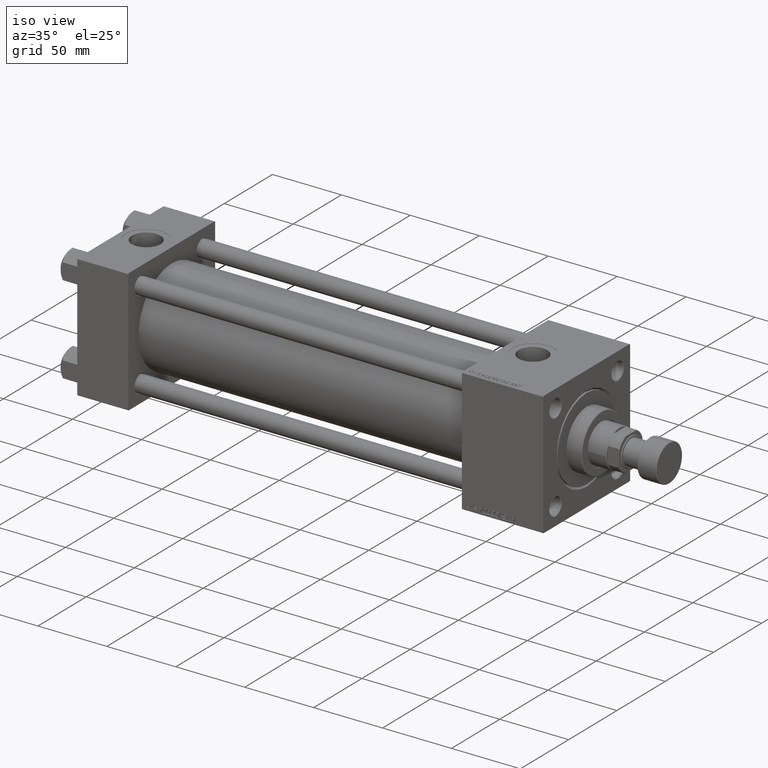
[diagram: clean part render]
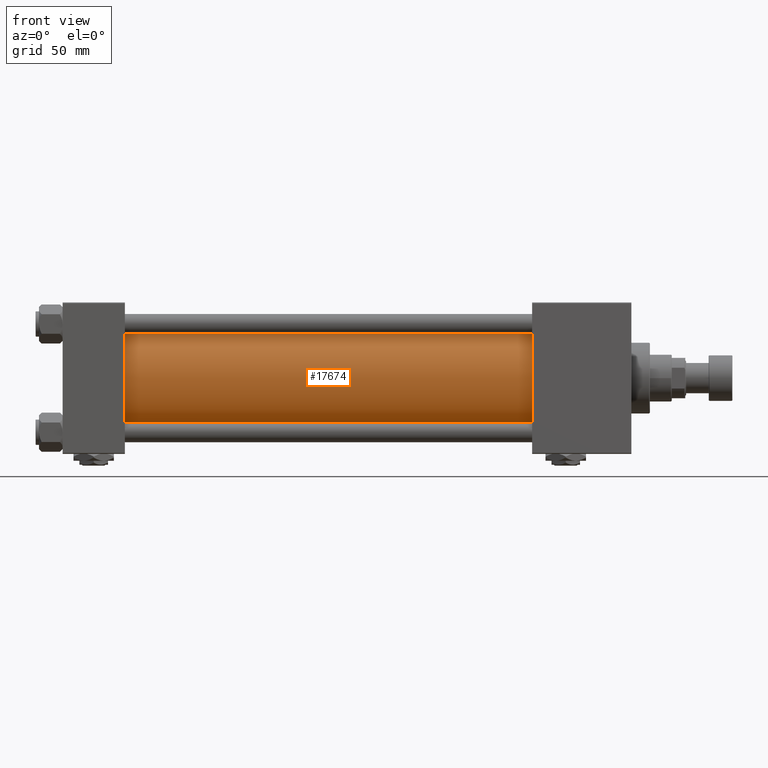
[diagram: tour spotlight — one face highlighted and labeled with its STEP entity id]
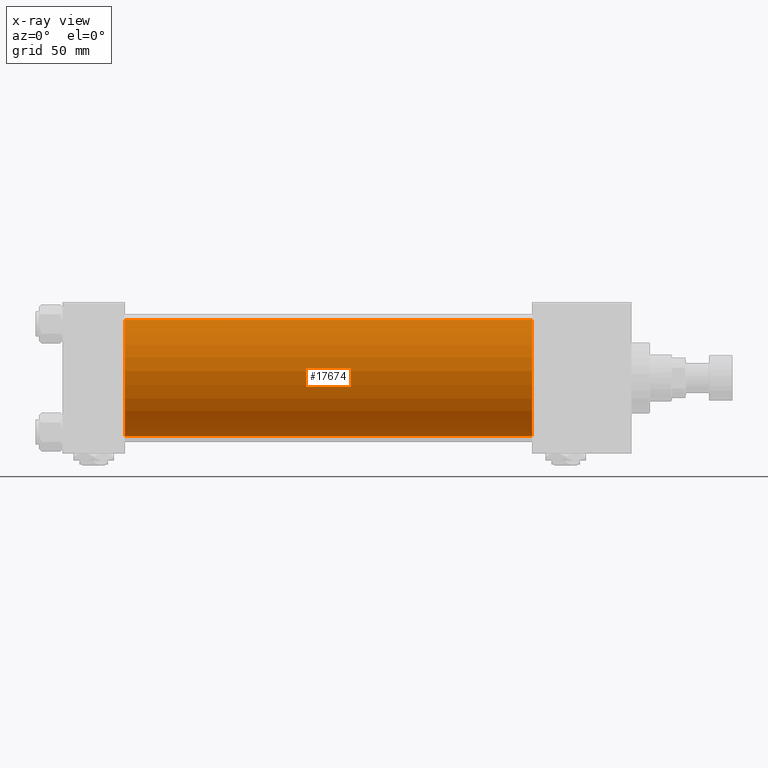
[diagram: x-ray of the same camera — body ghosted, this tour face saturated]
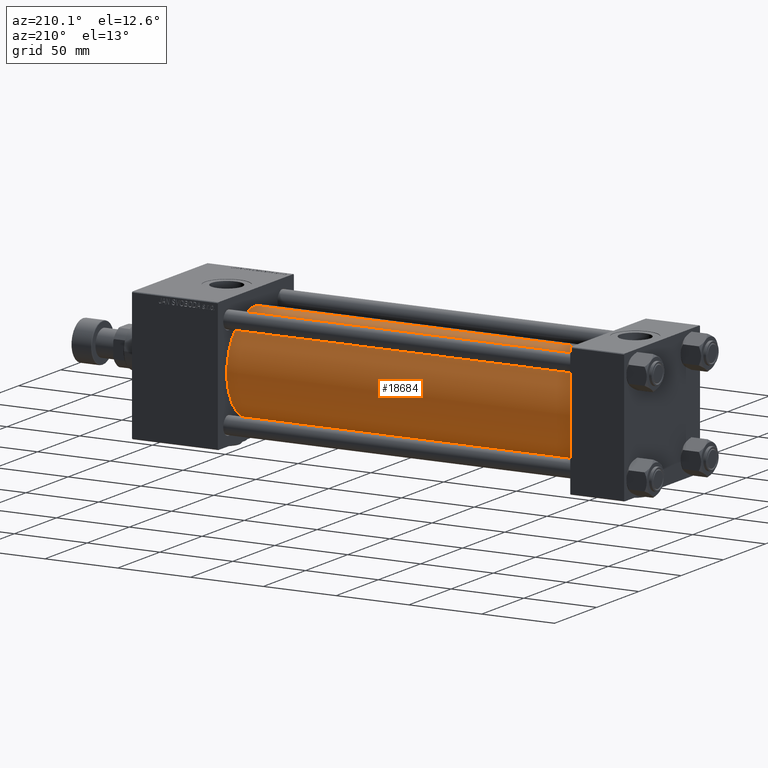
[diagram: tour spotlight — one face highlighted and labeled with its STEP entity id]
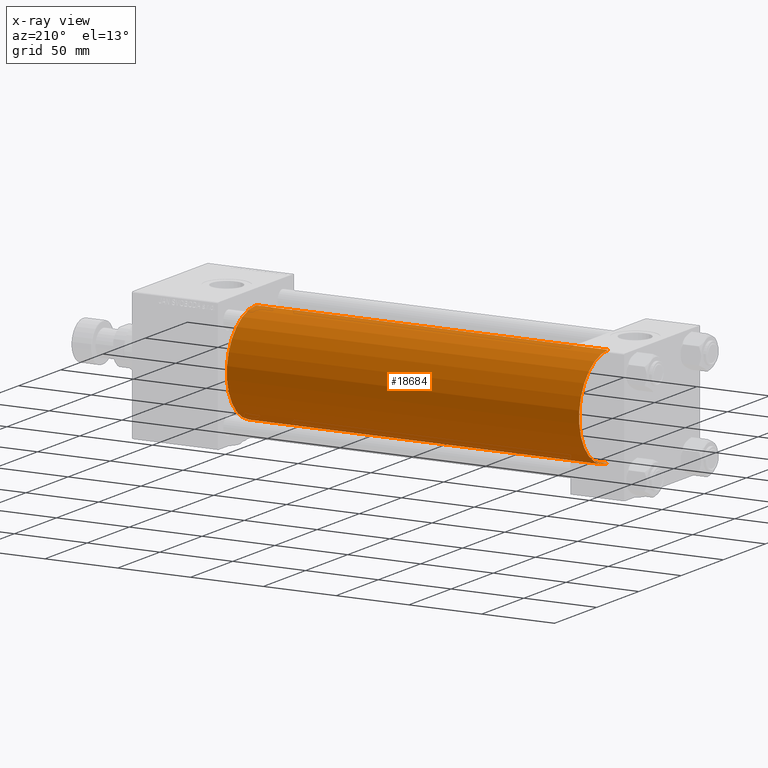
[diagram: x-ray of the same camera — body ghosted, this tour face saturated]
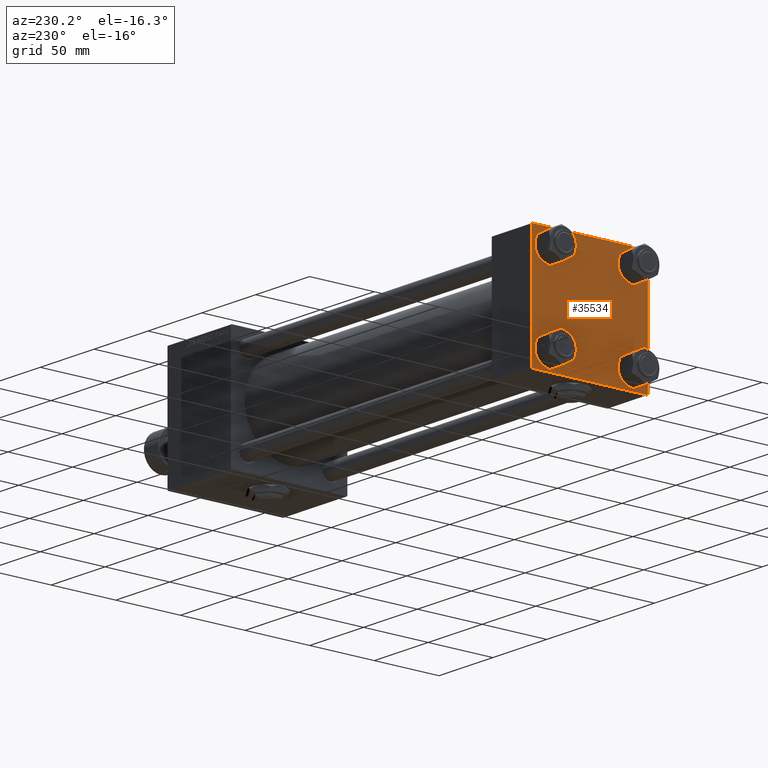
[diagram: tour spotlight — one face highlighted and labeled with its STEP entity id]
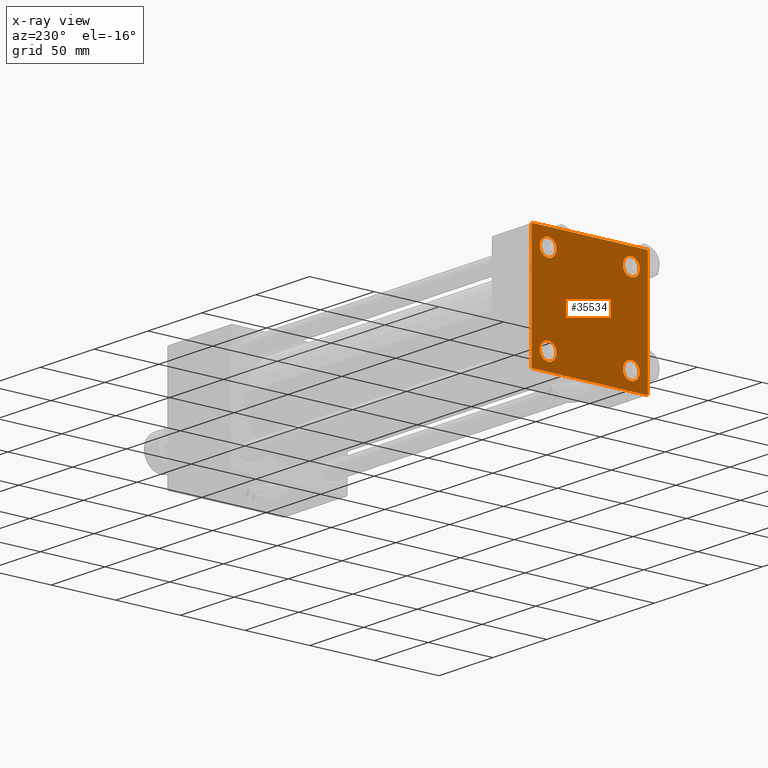
[diagram: x-ray of the same camera — body ghosted, this tour face saturated]
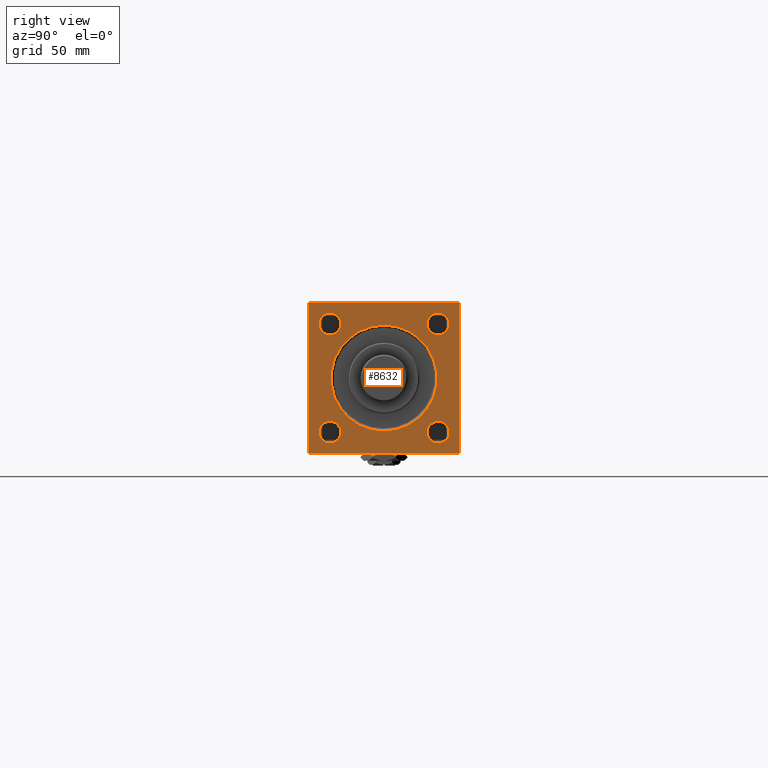
[diagram: tour spotlight — one face highlighted and labeled with its STEP entity id]
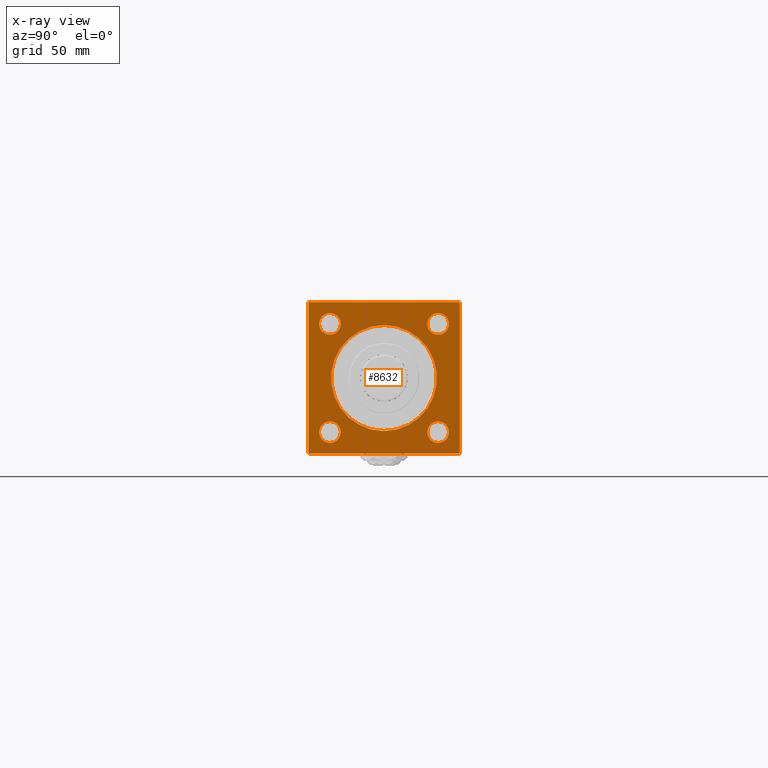
[diagram: x-ray of the same camera — body ghosted, this tour face saturated]
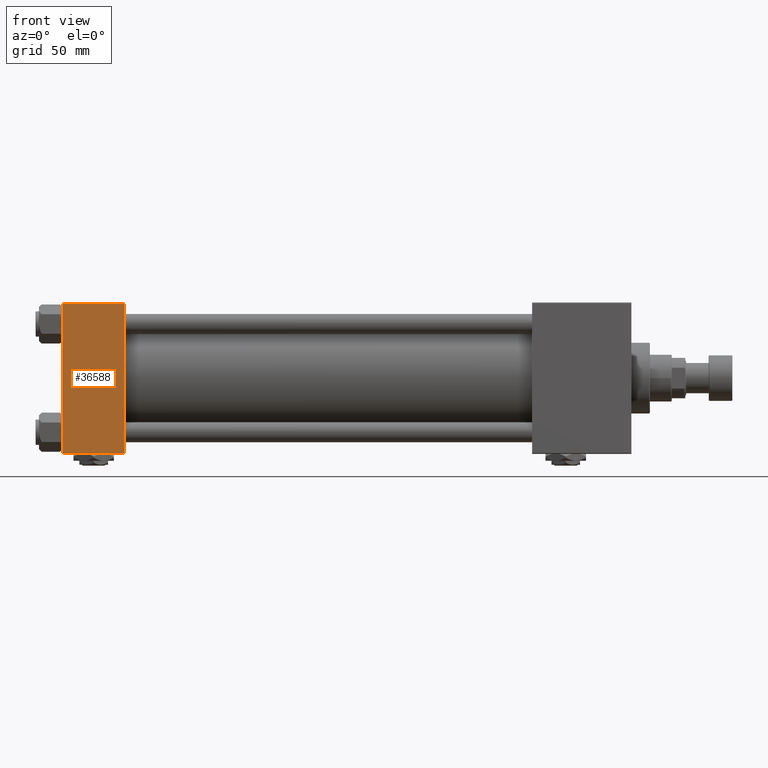
[diagram: tour spotlight — one face highlighted and labeled with its STEP entity id]
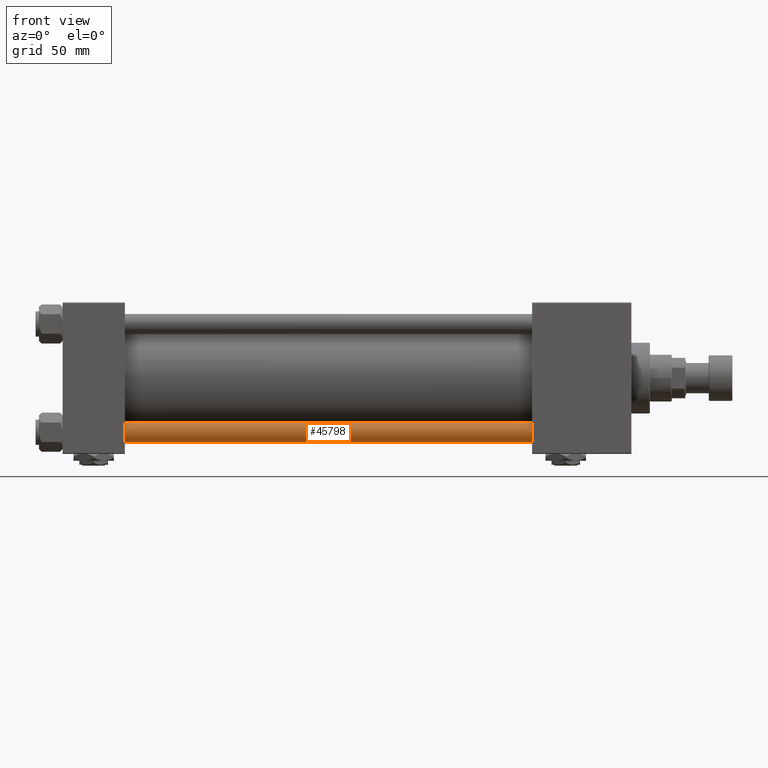
[diagram: tour spotlight — one face highlighted and labeled with its STEP entity id]
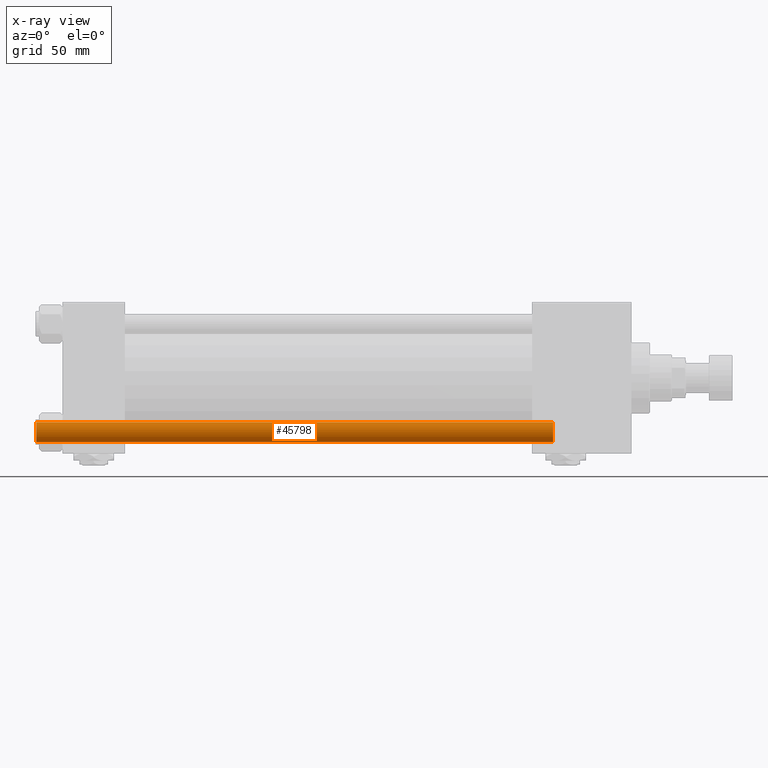
[diagram: x-ray of the same camera — body ghosted, this tour face saturated]
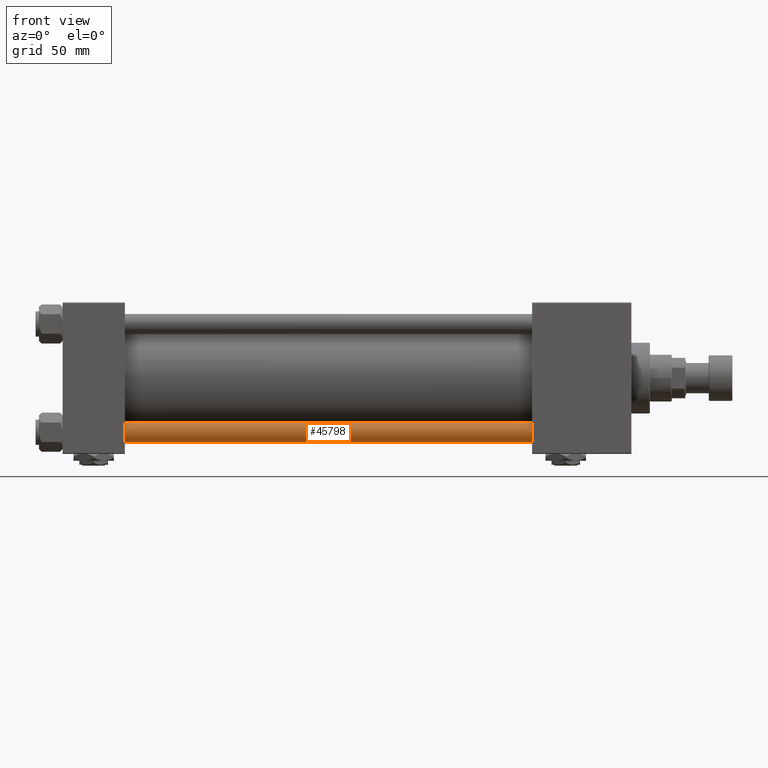
[diagram: tour spotlight — one face highlighted and labeled with its STEP entity id]
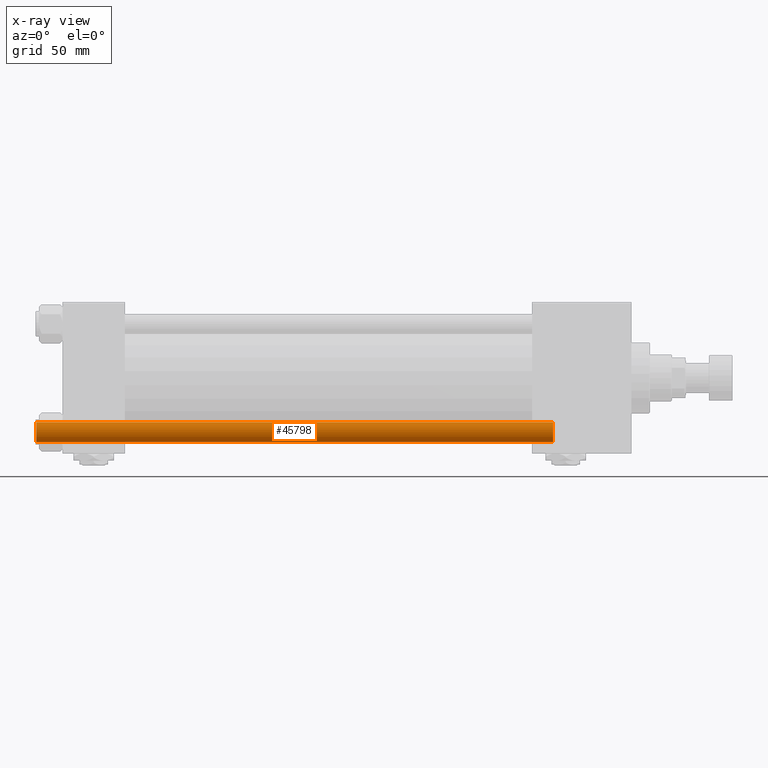
[diagram: x-ray of the same camera — body ghosted, this tour face saturated]
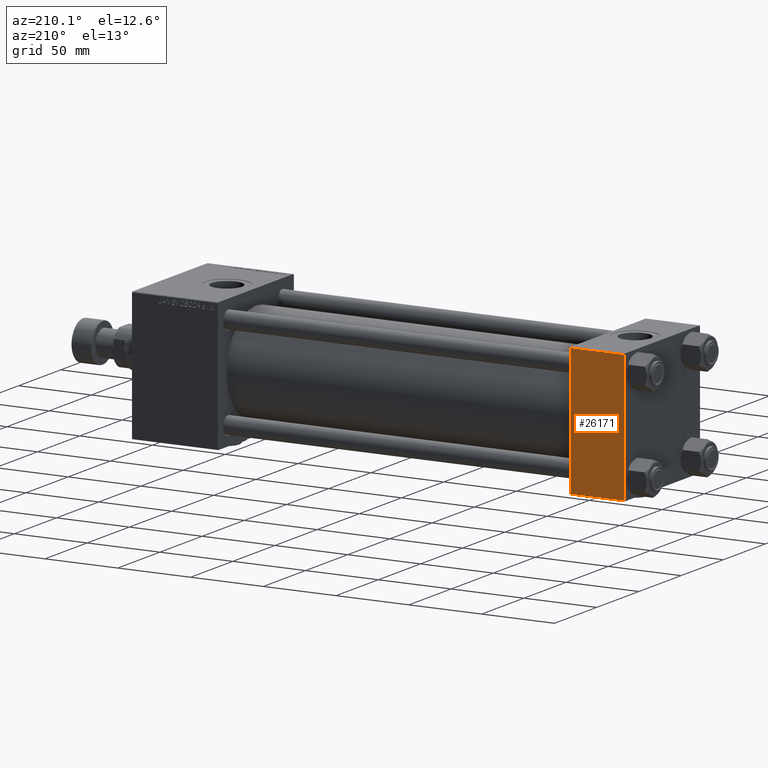
[diagram: tour spotlight — one face highlighted and labeled with its STEP entity id]
A machine part: a face-by-face anatomy tour. The part has 1264 B-rep faces; the first image is the clean iso view, then the 8 largest visible faces are spotlighted one at a time (largest first), each with its STEP entity span.

Face 1 — front view, entity #17674. An x-ray twin of the same camera follows (body ghosted, this face saturated) — the face is partly hidden behind the body. In plain terms, the highlighted cylindrical surface (partial cylindrical patch) has radius 34.5 mm, axis along (-1, -0, -0).
Definition (entity closure, byte-faithful):
#1693 = DIRECTION ( 'NONE',  ( 0.000000000000000000, 0.000000000000000000, 1.000000000000000000 ) ) ;
#2032 = LINE ( 'NONE', #9782, #8382 ) ;
#2772 = ORIENTED_EDGE ( 'NONE', *, *, #43837, .F. ) ;
#3514 = CARTESIAN_POINT ( 'NONE',  ( 278.9999999999999432, -2.602085213965210642E-15, 0.000000000000000000 ) ) ;
#3986 = AXIS2_PLACEMENT_3D ( 'NONE', #34067, #30337, #49541 ) ;
#6729 = AXIS2_PLACEMENT_3D ( 'NONE', #3514, #44601, #11261 ) ;
#7296 = AXIS2_PLACEMENT_3D ( 'NONE', #25428, #13696, #1693 ) ;
#8382 = VECTOR ( 'NONE', #10565, 1000.000000000000000 ) ;
#8388 = LINE ( 'NONE', #12123, #51734 ) ;
#9227 = VERTEX_POINT ( 'NONE', #50131 ) ;
#9782 = CARTESIAN_POINT ( 'NONE',  ( 278.9999999999999432, 1.622946243093158675E-15, -34.50000000000000000 ) ) ;
#10565 = DIRECTION ( 'NONE',  ( -1.000000000000000000, -0.000000000000000000, -0.000000000000000000 ) ) ;
#10613 = VERTEX_POINT ( 'NONE', #52297 ) ;
#11261 = DIRECTION ( 'NONE',  ( 0.000000000000000000, 0.000000000000000000, -1.000000000000000000 ) ) ;
#12123 = CARTESIAN_POINT ( 'NONE',  ( 278.9999999999999432, -2.602085213965210642E-15, 34.50000000000000000 ) ) ;
#13696 = DIRECTION ( 'NONE',  ( -1.000000000000000000, -0.000000000000000000, -0.000000000000000000 ) ) ;
#16962 = CIRCLE ( 'NONE', #6729, 34.50000000000000000 ) ;
#17674 = ADVANCED_FACE ( 'NONE', ( #34237 ), #29702, .T. ) ;
#20319 = EDGE_CURVE ( 'NONE', #10613, #44473, #39792, .T. ) ;
#25428 = CARTESIAN_POINT ( 'NONE',  ( 278.9999999999999432, -2.602085213965210642E-15, 0.000000000000000000 ) ) ;
#28392 = DIRECTION ( 'NONE',  ( -1.000000000000000000, -0.000000000000000000, -0.000000000000000000 ) ) ;
#29702 = CYLINDRICAL_SURFACE ( 'NONE', #7296, 34.50000000000000000 ) ;
#30337 = DIRECTION ( 'NONE',  ( 1.000000000000000000, -0.000000000000000000, 0.000000000000000000 ) ) ;
#34067 = CARTESIAN_POINT ( 'NONE',  ( 37.00000000000000711, -2.602085213965210642E-15, 0.000000000000000000 ) ) ;
#34237 = FACE_OUTER_BOUND ( 'NONE', #39499, .T. ) ;
#39499 = EDGE_LOOP ( 'NONE', ( #2772, #46703, #49406, #43893 ) ) ;
#39792 = CIRCLE ( 'NONE', #3986, 34.50000000000000000 ) ;
#40933 = EDGE_CURVE ( 'NONE', #9227, #10613, #8388, .T. ) ;
#42139 = CARTESIAN_POINT ( 'NONE',  ( 37.00000000000000711, 1.622946243093158675E-15, -34.50000000000000000 ) ) ;
#43837 = EDGE_CURVE ( 'NONE', #49039, #44473, #2032, .T. ) ;
#43893 = ORIENTED_EDGE ( 'NONE', *, *, #20319, .T. ) ;
#44473 = VERTEX_POINT ( 'NONE', #42139 ) ;
#44601 = DIRECTION ( 'NONE',  ( 1.000000000000000000, 0.000000000000000000, 0.000000000000000000 ) ) ;
#46297 = EDGE_CURVE ( 'NONE', #9227, #49039, #16962, .T. ) ;
#46703 = ORIENTED_EDGE ( 'NONE', *, *, #46297, .F. ) ;
#49039 = VERTEX_POINT ( 'NONE', #51199 ) ;
#49406 = ORIENTED_EDGE ( 'NONE', *, *, #40933, .T. ) ;
#49541 = DIRECTION ( 'NONE',  ( 0.000000000000000000, 0.000000000000000000, 1.000000000000000000 ) ) ;
#50131 = CARTESIAN_POINT ( 'NONE',  ( 278.9999999999999432, -2.602085213965210642E-15, 34.50000000000000000 ) ) ;
#51199 = CARTESIAN_POINT ( 'NONE',  ( 278.9999999999999432, 1.622946243093158675E-15, -34.50000000000000000 ) ) ;
#51734 = VECTOR ( 'NONE', #28392, 1000.000000000000000 ) ;
#52297 = CARTESIAN_POINT ( 'NONE',  ( 37.00000000000000711, -2.602085213965210642E-15, 34.50000000000000000 ) ) ;

Face 2 — auxiliary view, entity #18684. An x-ray twin of the same camera follows (body ghosted, this face saturated) — the face is partly hidden behind the body. In plain terms, the highlighted cylindrical surface (partial cylindrical patch) has radius 34.5 mm, axis along (-1, -0, -0).
Definition (entity closure, byte-faithful):
#721 = AXIS2_PLACEMENT_3D ( 'NONE', #30477, #9667, #46745 ) ;
#2032 = LINE ( 'NONE', #9782, #8382 ) ;
#2790 = ORIENTED_EDGE ( 'NONE', *, *, #35321, .F. ) ;
#6805 = CARTESIAN_POINT ( 'NONE',  ( 278.9999999999999432, -2.602085213965210642E-15, 0.000000000000000000 ) ) ;
#6887 = ORIENTED_EDGE ( 'NONE', *, *, #40933, .F. ) ;
#8382 = VECTOR ( 'NONE', #10565, 1000.000000000000000 ) ;
#8388 = LINE ( 'NONE', #12123, #51734 ) ;
#9227 = VERTEX_POINT ( 'NONE', #50131 ) ;
#9244 = CIRCLE ( 'NONE', #721, 34.50000000000000000 ) ;
#9333 = CARTESIAN_POINT ( 'NONE',  ( 278.9999999999999432, -2.602085213965210642E-15, 0.000000000000000000 ) ) ;
#9667 = DIRECTION ( 'NONE',  ( 1.000000000000000000, -0.000000000000000000, 0.000000000000000000 ) ) ;
#9782 = CARTESIAN_POINT ( 'NONE',  ( 278.9999999999999432, 1.622946243093158675E-15, -34.50000000000000000 ) ) ;
#10296 = CYLINDRICAL_SURFACE ( 'NONE', #44824, 34.50000000000000000 ) ;
#10565 = DIRECTION ( 'NONE',  ( -1.000000000000000000, -0.000000000000000000, -0.000000000000000000 ) ) ;
#10613 = VERTEX_POINT ( 'NONE', #52297 ) ;
#12123 = CARTESIAN_POINT ( 'NONE',  ( 278.9999999999999432, -2.602085213965210642E-15, 34.50000000000000000 ) ) ;
#18684 = ADVANCED_FACE ( 'NONE', ( #19070 ), #10296, .T. ) ;
#19070 = FACE_OUTER_BOUND ( 'NONE', #30939, .T. ) ;
#24214 = ORIENTED_EDGE ( 'NONE', *, *, #43837, .T. ) ;
#26933 = CIRCLE ( 'NONE', #51651, 34.50000000000000000 ) ;
#28392 = DIRECTION ( 'NONE',  ( -1.000000000000000000, -0.000000000000000000, -0.000000000000000000 ) ) ;
#30477 = CARTESIAN_POINT ( 'NONE',  ( 37.00000000000000711, -2.602085213965210642E-15, 0.000000000000000000 ) ) ;
#30939 = EDGE_LOOP ( 'NONE', ( #2790, #24214, #36009, #6887 ) ) ;
#34676 = DIRECTION ( 'NONE',  ( 1.000000000000000000, 0.000000000000000000, 0.000000000000000000 ) ) ;
#35321 = EDGE_CURVE ( 'NONE', #49039, #9227, #26933, .T. ) ;
#36009 = ORIENTED_EDGE ( 'NONE', *, *, #45097, .T. ) ;
#38411 = DIRECTION ( 'NONE',  ( 0.000000000000000000, 0.000000000000000000, -1.000000000000000000 ) ) ;
#39353 = DIRECTION ( 'NONE',  ( 0.000000000000000000, 0.000000000000000000, 1.000000000000000000 ) ) ;
#40933 = EDGE_CURVE ( 'NONE', #9227, #10613, #8388, .T. ) ;
#42139 = CARTESIAN_POINT ( 'NONE',  ( 37.00000000000000711, 1.622946243093158675E-15, -34.50000000000000000 ) ) ;
#43837 = EDGE_CURVE ( 'NONE', #49039, #44473, #2032, .T. ) ;
#44473 = VERTEX_POINT ( 'NONE', #42139 ) ;
#44824 = AXIS2_PLACEMENT_3D ( 'NONE', #6805, #50582, #39353 ) ;
#45097 = EDGE_CURVE ( 'NONE', #44473, #10613, #9244, .T. ) ;
#46745 = DIRECTION ( 'NONE',  ( 0.000000000000000000, 0.000000000000000000, 1.000000000000000000 ) ) ;
#49039 = VERTEX_POINT ( 'NONE', #51199 ) ;
#50131 = CARTESIAN_POINT ( 'NONE',  ( 278.9999999999999432, -2.602085213965210642E-15, 34.50000000000000000 ) ) ;
#50582 = DIRECTION ( 'NONE',  ( -1.000000000000000000, -0.000000000000000000, -0.000000000000000000 ) ) ;
#51199 = CARTESIAN_POINT ( 'NONE',  ( 278.9999999999999432, 1.622946243093158675E-15, -34.50000000000000000 ) ) ;
#51651 = AXIS2_PLACEMENT_3D ( 'NONE', #9333, #34676, #38411 ) ;
#51734 = VECTOR ( 'NONE', #28392, 1000.000000000000000 ) ;
#52297 = CARTESIAN_POINT ( 'NONE',  ( 37.00000000000000711, -2.602085213965210642E-15, 34.50000000000000000 ) ) ;

Face 3 — auxiliary view, entity #35534. An x-ray twin of the same camera follows (body ghosted, this face saturated) — the face is partly hidden behind the body. In plain terms, the highlighted planar face has unit normal (-1, 0, 0).
Definition (entity closure, byte-faithful):
#208 = VERTEX_POINT ( 'NONE', #32836 ) ;
#240 = LINE ( 'NONE', #9027, #28450 ) ;
#247 = CARTESIAN_POINT ( 'NONE',  ( 0.000000000000000000, 44.74999999999998579, -44.74999999999998579 ) ) ;
#363 = AXIS2_PLACEMENT_3D ( 'NONE', #36052, #19767, #4036 ) ;
#1045 = EDGE_CURVE ( 'NONE', #47963, #19359, #1718, .T. ) ;
#1718 = CIRCLE ( 'NONE', #13679, 6.499999999999977796 ) ;
#1723 = EDGE_CURVE ( 'NONE', #12670, #15579, #21081, .T. ) ;
#2513 = CARTESIAN_POINT ( 'NONE',  ( 0.000000000000000000, 44.99999999999998579, -44.49999999999995737 ) ) ;
#2825 = CIRCLE ( 'NONE', #26688, 6.500000000000019540 ) ;
#3135 = EDGE_LOOP ( 'NONE', ( #19887, #23934 ) ) ;
#3615 = VERTEX_POINT ( 'NONE', #5466 ) ;
#3894 = DIRECTION ( 'NONE',  ( 1.000000000000000000, -0.000000000000000000, 0.000000000000000000 ) ) ;
#4036 = DIRECTION ( 'NONE',  ( 0.000000000000000000, 0.000000000000000000, 1.000000000000000000 ) ) ;
#4134 = LINE ( 'NONE', #27885, #41280 ) ;
#5147 = EDGE_CURVE ( 'NONE', #10272, #3615, #10627, .T. ) ;
#5466 = CARTESIAN_POINT ( 'NONE',  ( 0.000000000000000000, 44.99999999999998579, 44.50000000000001421 ) ) ;
#5986 = VERTEX_POINT ( 'NONE', #28625 ) ;
#6278 = ORIENTED_EDGE ( 'NONE', *, *, #35015, .T. ) ;
#6429 = EDGE_LOOP ( 'NONE', ( #8730, #7598, #29806, #12833, #14924, #6278, #43966, #47568 ) ) ;
#6485 = EDGE_CURVE ( 'NONE', #24314, #22640, #21491, .T. ) ;
#6540 = DIRECTION ( 'NONE',  ( 0.000000000000000000, -1.000000000000000000, -1.541976423090495387E-16 ) ) ;
#7138 = DIRECTION ( 'NONE',  ( 0.000000000000000000, 0.7071067811865474617, -0.7071067811865474617 ) ) ;
#7598 = ORIENTED_EDGE ( 'NONE', *, *, #8169, .T. ) ;
#8169 = EDGE_CURVE ( 'NONE', #28984, #208, #36541, .T. ) ;
#8730 = ORIENTED_EDGE ( 'NONE', *, *, #51605, .T. ) ;
#8937 = CARTESIAN_POINT ( 'NONE',  ( 0.000000000000000000, -32.14999999999997726, 32.15000000000001279 ) ) ;
#9027 = CARTESIAN_POINT ( 'NONE',  ( 0.000000000000000000, 44.99999999999998579, 45.00000000000001421 ) ) ;
#10272 = VERTEX_POINT ( 'NONE', #45093 ) ;
#10627 = LINE ( 'NONE', #22353, #12111 ) ;
#10751 = VECTOR ( 'NONE', #50072, 1000.000000000000114 ) ;
#11313 = CARTESIAN_POINT ( 'NONE',  ( 0.000000000000000000, 32.14999999999999147, 32.15000000000000568 ) ) ;
#11390 = VECTOR ( 'NONE', #11742, 1000.000000000000114 ) ;
#11742 = DIRECTION ( 'NONE',  ( -0.000000000000000000, -0.7071067811865474617, -0.7071067811865474617 ) ) ;
#11913 = DIRECTION ( 'NONE',  ( 0.000000000000000000, 7.709882115452476934E-17, -1.000000000000000000 ) ) ;
#12111 = VECTOR ( 'NONE', #7138, 1000.000000000000114 ) ;
#12670 = VERTEX_POINT ( 'NONE', #13274 ) ;
#12833 = ORIENTED_EDGE ( 'NONE', *, *, #37427, .T. ) ;
#13020 = AXIS2_PLACEMENT_3D ( 'NONE', #51182, #21571, #14632 ) ;
#13268 = FACE_BOUND ( 'NONE', #25223, .T. ) ;
#13274 = CARTESIAN_POINT ( 'NONE',  ( 0.000000000000000000, -45.00000000000000711, 44.49999999999997158 ) ) ;
#13537 = FACE_BOUND ( 'NONE', #3135, .T. ) ;
#13556 = DIRECTION ( 'NONE',  ( 1.000000000000000000, -0.000000000000000000, 0.000000000000000000 ) ) ;
#13679 = AXIS2_PLACEMENT_3D ( 'NONE', #11313, #19034, #35066 ) ;
#13863 = AXIS2_PLACEMENT_3D ( 'NONE', #25997, #38009, #21453 ) ;
#14325 = VERTEX_POINT ( 'NONE', #35233 ) ;
#14335 = CARTESIAN_POINT ( 'NONE',  ( 0.000000000000000000, 0.000000000000000000, 0.000000000000000000 ) ) ;
#14632 = DIRECTION ( 'NONE',  ( 0.000000000000000000, 0.000000000000000000, 1.000000000000000000 ) ) ;
#14924 = ORIENTED_EDGE ( 'NONE', *, *, #1723, .F. ) ;
#15125 = CARTESIAN_POINT ( 'NONE',  ( 0.000000000000000000, -32.14999999999997726, 38.65000000000003411 ) ) ;
#15306 = VECTOR ( 'NONE', #6540, 1000.000000000000000 ) ;
#15579 = VERTEX_POINT ( 'NONE', #31452 ) ;
#15582 = CIRCLE ( 'NONE', #13020, 6.499999999999977796 ) ;
#15967 = DIRECTION ( 'NONE',  ( 1.000000000000000000, -0.000000000000000000, 0.000000000000000000 ) ) ;
#17337 = EDGE_CURVE ( 'NONE', #32132, #14325, #49048, .T. ) ;
#17820 = CARTESIAN_POINT ( 'NONE',  ( 0.000000000000000000, 32.14999999999999147, 25.65000000000002700 ) ) ;
#18281 = CARTESIAN_POINT ( 'NONE',  ( 0.000000000000000000, -32.14999999999997726, -32.15000000000001279 ) ) ;
#19034 = DIRECTION ( 'NONE',  ( 1.000000000000000000, -0.000000000000000000, 0.000000000000000000 ) ) ;
#19359 = VERTEX_POINT ( 'NONE', #31886 ) ;
#19668 = CARTESIAN_POINT ( 'NONE',  ( 0.000000000000000000, -44.49999999999995737, 45.00000000000000000 ) ) ;
#19767 = DIRECTION ( 'NONE',  ( 1.000000000000000000, -0.000000000000000000, 0.000000000000000000 ) ) ;
#19887 = ORIENTED_EDGE ( 'NONE', *, *, #44798, .T. ) ;
#21081 = LINE ( 'NONE', #32187, #29019 ) ;
#21453 = DIRECTION ( 'NONE',  ( 0.000000000000000000, 0.000000000000000000, 1.000000000000000000 ) ) ;
#21491 = CIRCLE ( 'NONE', #13863, 6.499999999999977796 ) ;
#21527 = DIRECTION ( 'NONE',  ( -0.000000000000000000, 0.000000000000000000, 1.000000000000000000 ) ) ;
#21571 = DIRECTION ( 'NONE',  ( 1.000000000000000000, -0.000000000000000000, 0.000000000000000000 ) ) ;
#21784 = LINE ( 'NONE', #22044, #10751 ) ;
#22044 = CARTESIAN_POINT ( 'NONE',  ( -0.000000000000000000, -44.75000000000029843, 44.74999999999967315 ) ) ;
#22353 = CARTESIAN_POINT ( 'NONE',  ( 0.000000000000000000, 44.74999999999999289, 44.74999999999999289 ) ) ;
#22459 = VERTEX_POINT ( 'NONE', #45377 ) ;
#22556 = VERTEX_POINT ( 'NONE', #36008 ) ;
#22640 = VERTEX_POINT ( 'NONE', #27469 ) ;
#22755 = EDGE_LOOP ( 'NONE', ( #36740, #32428 ) ) ;
#23934 = ORIENTED_EDGE ( 'NONE', *, *, #6485, .T. ) ;
#23958 = VERTEX_POINT ( 'NONE', #19668 ) ;
#24314 = VERTEX_POINT ( 'NONE', #24657 ) ;
#24657 = CARTESIAN_POINT ( 'NONE',  ( 0.000000000000000000, 32.14999999999999147, -38.64999999999998437 ) ) ;
#25223 = EDGE_LOOP ( 'NONE', ( #42856, #32233 ) ) ;
#25762 = ORIENTED_EDGE ( 'NONE', *, *, #27618, .T. ) ;
#25997 = CARTESIAN_POINT ( 'NONE',  ( 0.000000000000000000, 32.14999999999999147, -32.15000000000000568 ) ) ;
#26026 = EDGE_LOOP ( 'NONE', ( #25762, #49468 ) ) ;
#26688 = AXIS2_PLACEMENT_3D ( 'NONE', #8937, #3894, #37232 ) ;
#26805 = CARTESIAN_POINT ( 'NONE',  ( 0.000000000000000000, 44.99999999999998579, 45.00000000000001421 ) ) ;
#27469 = CARTESIAN_POINT ( 'NONE',  ( 0.000000000000000000, 32.14999999999999147, -25.65000000000002700 ) ) ;
#27618 = EDGE_CURVE ( 'NONE', #19359, #47963, #15582, .T. ) ;
#27885 = CARTESIAN_POINT ( 'NONE',  ( 0.000000000000000000, 44.99999999999998579, -44.99999999999998579 ) ) ;
#28450 = VECTOR ( 'NONE', #49567, 1000.000000000000000 ) ;
#28625 = CARTESIAN_POINT ( 'NONE',  ( 0.000000000000000000, -32.14999999999997726, -25.65000000000003411 ) ) ;
#28820 = EDGE_CURVE ( 'NONE', #14325, #32132, #2825, .T. ) ;
#28984 = VERTEX_POINT ( 'NONE', #2513 ) ;
#29019 = VECTOR ( 'NONE', #11913, 1000.000000000000000 ) ;
#29547 = DIRECTION ( 'NONE',  ( -1.000000000000000000, 0.000000000000000000, -0.000000000000000000 ) ) ;
#29806 = ORIENTED_EDGE ( 'NONE', *, *, #52665, .T. ) ;
#30095 = DIRECTION ( 'NONE',  ( 0.000000000000000000, 0.000000000000000000, 1.000000000000000000 ) ) ;
#30300 = CARTESIAN_POINT ( 'NONE',  ( 0.000000000000000000, -44.74999999999998579, -44.74999999999998579 ) ) ;
#30868 = EDGE_CURVE ( 'NONE', #22556, #5986, #42126, .T. ) ;
#31146 = AXIS2_PLACEMENT_3D ( 'NONE', #37828, #13556, #30095 ) ;
#31423 = AXIS2_PLACEMENT_3D ( 'NONE', #52515, #15967, #32235 ) ;
#31452 = CARTESIAN_POINT ( 'NONE',  ( 0.000000000000000000, -45.00000000000000000, -44.49999999999995737 ) ) ;
#31886 = CARTESIAN_POINT ( 'NONE',  ( 0.000000000000000000, 32.14999999999999147, 38.64999999999999147 ) ) ;
#32132 = VERTEX_POINT ( 'NONE', #15125 ) ;
#32153 = DIRECTION ( 'NONE',  ( 0.000000000000000000, -1.000000000000000000, -1.541976423090495633E-16 ) ) ;
#32187 = CARTESIAN_POINT ( 'NONE',  ( 0.000000000000000000, -45.00000000000000711, 45.00000000000000000 ) ) ;
#32233 = ORIENTED_EDGE ( 'NONE', *, *, #30868, .T. ) ;
#32235 = DIRECTION ( 'NONE',  ( 0.000000000000000000, 0.000000000000000000, 1.000000000000000000 ) ) ;
#32428 = ORIENTED_EDGE ( 'NONE', *, *, #28820, .T. ) ;
#32836 = CARTESIAN_POINT ( 'NONE',  ( 0.000000000000000000, 44.49999999999998579, -44.99999999999998579 ) ) ;
#32992 = EDGE_CURVE ( 'NONE', #5986, #22556, #46486, .T. ) ;
#34553 = VECTOR ( 'NONE', #46030, 1000.000000000000114 ) ;
#35015 = EDGE_CURVE ( 'NONE', #12670, #23958, #21784, .T. ) ;
#35066 = DIRECTION ( 'NONE',  ( 0.000000000000000000, 0.000000000000000000, 1.000000000000000000 ) ) ;
#35088 = LINE ( 'NONE', #26805, #15306 ) ;
#35233 = CARTESIAN_POINT ( 'NONE',  ( 0.000000000000000000, -32.14999999999997726, 25.64999999999999147 ) ) ;
#35355 = DIRECTION ( 'NONE',  ( 1.000000000000000000, -0.000000000000000000, 0.000000000000000000 ) ) ;
#35534 = ADVANCED_FACE ( 'NONE', ( #50093, #13268, #13537, #50887, #38608 ), #50352, .T. ) ;
#36008 = CARTESIAN_POINT ( 'NONE',  ( 0.000000000000000000, -32.14999999999997726, -38.64999999999999147 ) ) ;
#36052 = CARTESIAN_POINT ( 'NONE',  ( 0.000000000000000000, -32.14999999999997726, -32.15000000000001279 ) ) ;
#36541 = LINE ( 'NONE', #247, #11390 ) ;
#36740 = ORIENTED_EDGE ( 'NONE', *, *, #17337, .T. ) ;
#37232 = DIRECTION ( 'NONE',  ( 0.000000000000000000, 0.000000000000000000, 1.000000000000000000 ) ) ;
#37427 = EDGE_CURVE ( 'NONE', #22459, #15579, #46303, .T. ) ;
#37828 = CARTESIAN_POINT ( 'NONE',  ( 0.000000000000000000, -32.14999999999997726, 32.15000000000001279 ) ) ;
#38009 = DIRECTION ( 'NONE',  ( 1.000000000000000000, -0.000000000000000000, 0.000000000000000000 ) ) ;
#38608 = FACE_OUTER_BOUND ( 'NONE', #6429, .T. ) ;
#41280 = VECTOR ( 'NONE', #32153, 1000.000000000000000 ) ;
#41622 = CIRCLE ( 'NONE', #31423, 6.499999999999977796 ) ;
#42126 = CIRCLE ( 'NONE', #363, 6.499999999999977796 ) ;
#42217 = AXIS2_PLACEMENT_3D ( 'NONE', #18281, #35355, #51625 ) ;
#42856 = ORIENTED_EDGE ( 'NONE', *, *, #32992, .T. ) ;
#43966 = ORIENTED_EDGE ( 'NONE', *, *, #46849, .F. ) ;
#44798 = EDGE_CURVE ( 'NONE', #22640, #24314, #41622, .T. ) ;
#45093 = CARTESIAN_POINT ( 'NONE',  ( 0.000000000000000000, 44.49999999999998579, 45.00000000000001421 ) ) ;
#45377 = CARTESIAN_POINT ( 'NONE',  ( 0.000000000000000000, -44.49999999999995737, -45.00000000000000000 ) ) ;
#46030 = DIRECTION ( 'NONE',  ( 0.000000000000000000, -0.7071067811865474617, 0.7071067811865474617 ) ) ;
#46303 = LINE ( 'NONE', #30300, #34553 ) ;
#46486 = CIRCLE ( 'NONE', #42217, 6.499999999999977796 ) ;
#46849 = EDGE_CURVE ( 'NONE', #10272, #23958, #35088, .T. ) ;
#47568 = ORIENTED_EDGE ( 'NONE', *, *, #5147, .T. ) ;
#47963 = VERTEX_POINT ( 'NONE', #17820 ) ;
#49048 = CIRCLE ( 'NONE', #31146, 6.500000000000019540 ) ;
#49468 = ORIENTED_EDGE ( 'NONE', *, *, #1045, .T. ) ;
#49567 = DIRECTION ( 'NONE',  ( 0.000000000000000000, 0.000000000000000000, -1.000000000000000000 ) ) ;
#49929 = AXIS2_PLACEMENT_3D ( 'NONE', #14335, #29547, #21527 ) ;
#50072 = DIRECTION ( 'NONE',  ( -0.000000000000000000, 0.7071067811865425767, 0.7071067811865524577 ) ) ;
#50093 = FACE_BOUND ( 'NONE', #22755, .T. ) ;
#50352 = PLANE ( 'NONE',  #49929 ) ;
#50887 = FACE_BOUND ( 'NONE', #26026, .T. ) ;
#51182 = CARTESIAN_POINT ( 'NONE',  ( 0.000000000000000000, 32.14999999999999147, 32.15000000000000568 ) ) ;
#51605 = EDGE_CURVE ( 'NONE', #3615, #28984, #240, .T. ) ;
#51625 = DIRECTION ( 'NONE',  ( 0.000000000000000000, 0.000000000000000000, 1.000000000000000000 ) ) ;
#52515 = CARTESIAN_POINT ( 'NONE',  ( 0.000000000000000000, 32.14999999999999147, -32.15000000000000568 ) ) ;
#52665 = EDGE_CURVE ( 'NONE', #208, #22459, #4134, .T. ) ;

Face 4 — right view, entity #8632. An x-ray twin of the same camera follows (body ghosted, this face saturated) — the face is partly hidden behind the body. In plain terms, the highlighted planar face has unit normal (-1, 0, 0).
Definition (entity closure, byte-faithful):
#585 = DIRECTION ( 'NONE',  ( -1.000000000000000000, -0.000000000000000000, -0.000000000000000000 ) ) ;
#594 = LINE ( 'NONE', #20585, #51476 ) ;
#1171 = VECTOR ( 'NONE', #29994, 1000.000000000000114 ) ;
#1884 = EDGE_LOOP ( 'NONE', ( #13354, #31580 ) ) ;
#2043 = DIRECTION ( 'NONE',  ( 0.000000000000000000, 0.000000000000000000, 1.000000000000000000 ) ) ;
#2198 = CARTESIAN_POINT ( 'NONE',  ( 337.9999999999999432, 32.14999999999999147, -32.15000000000000568 ) ) ;
#3736 = VERTEX_POINT ( 'NONE', #29149 ) ;
#3902 = DIRECTION ( 'NONE',  ( 0.000000000000000000, -1.000000000000000000, -1.541976423090495140E-16 ) ) ;
#4325 = CARTESIAN_POINT ( 'NONE',  ( 337.9999999999999432, 32.14999999999999147, 32.15000000000000568 ) ) ;
#4846 = LINE ( 'NONE', #36355, #32176 ) ;
#5476 = CIRCLE ( 'NONE', #45496, 6.499999999999943157 ) ;
#5822 = EDGE_CURVE ( 'NONE', #34638, #47009, #36369, .T. ) ;
#5934 = CARTESIAN_POINT ( 'NONE',  ( 337.9999999999999432, 0.000000000000000000, -31.49999999999997158 ) ) ;
#5948 = CARTESIAN_POINT ( 'NONE',  ( 337.9999999999999432, 44.49999999999995737, 45.00000000000000000 ) ) ;
#6001 = CARTESIAN_POINT ( 'NONE',  ( 337.9999999999999432, 32.14999999999999147, 38.64999999999994884 ) ) ;
#6159 = EDGE_LOOP ( 'NONE', ( #19816, #15460, #16254, #28089, #7580, #42466, #41873, #42966 ) ) ;
#6212 = LINE ( 'NONE', #30242, #39674 ) ;
#6312 = CIRCLE ( 'NONE', #33568, 6.499999999999950262 ) ;
#6360 = DIRECTION ( 'NONE',  ( -1.000000000000000000, -0.000000000000000000, -0.000000000000000000 ) ) ;
#7062 = CARTESIAN_POINT ( 'NONE',  ( 337.9999999999999432, 0.000000000000000000, 0.000000000000000000 ) ) ;
#7399 = FACE_BOUND ( 'NONE', #38315, .T. ) ;
#7414 = DIRECTION ( 'NONE',  ( 0.000000000000000000, 0.000000000000000000, 1.000000000000000000 ) ) ;
#7580 = ORIENTED_EDGE ( 'NONE', *, *, #17747, .F. ) ;
#7716 = DIRECTION ( 'NONE',  ( -1.000000000000000000, -0.000000000000000000, -0.000000000000000000 ) ) ;
#7717 = LINE ( 'NONE', #45847, #36849 ) ;
#7787 = DIRECTION ( 'NONE',  ( -1.000000000000000000, -0.000000000000000000, -0.000000000000000000 ) ) ;
#7797 = CARTESIAN_POINT ( 'NONE',  ( 337.9999999999999432, -44.49999999999995737, -45.00000000000000000 ) ) ;
#8193 = FACE_BOUND ( 'NONE', #12761, .T. ) ;
#8317 = VERTEX_POINT ( 'NONE', #25027 ) ;
#8632 = ADVANCED_FACE ( 'NONE', ( #44749, #8193, #47956, #11407, #7399, #52214 ), #31943, .F. ) ;
#8892 = AXIS2_PLACEMENT_3D ( 'NONE', #31441, #6360, #7414 ) ;
#9373 = CARTESIAN_POINT ( 'NONE',  ( 337.9999999999999432, -32.15000000000001279, -38.64999999999996305 ) ) ;
#9580 = CARTESIAN_POINT ( 'NONE',  ( 337.9999999999999432, 3.857637417314158745E-15, 31.49999999999997158 ) ) ;
#9879 = EDGE_CURVE ( 'NONE', #21962, #46203, #22237, .T. ) ;
#10228 = DIRECTION ( 'NONE',  ( 0.000000000000000000, 0.000000000000000000, -1.000000000000000000 ) ) ;
#10435 = VERTEX_POINT ( 'NONE', #9373 ) ;
#11073 = CARTESIAN_POINT ( 'NONE',  ( 337.9999999999999432, -44.50000000000002842, 44.99999999999998579 ) ) ;
#11407 = FACE_BOUND ( 'NONE', #13813, .T. ) ;
#11680 = DIRECTION ( 'NONE',  ( -1.000000000000000000, 0.000000000000000000, -0.000000000000000000 ) ) ;
#12339 = DIRECTION ( 'NONE',  ( -0.000000000000000000, -0.7071067811865081598, -0.7071067811865868746 ) ) ;
#12761 = EDGE_LOOP ( 'NONE', ( #18180, #41732 ) ) ;
#13043 = VERTEX_POINT ( 'NONE', #6001 ) ;
#13354 = ORIENTED_EDGE ( 'NONE', *, *, #14662, .T. ) ;
#13563 = ORIENTED_EDGE ( 'NONE', *, *, #49004, .T. ) ;
#13813 = EDGE_LOOP ( 'NONE', ( #18919, #13563 ) ) ;
#14076 = DIRECTION ( 'NONE',  ( 0.000000000000000000, -1.000000000000000000, 0.000000000000000000 ) ) ;
#14130 = EDGE_CURVE ( 'NONE', #46770, #35892, #594, .T. ) ;
#14192 = EDGE_CURVE ( 'NONE', #13043, #35696, #5476, .T. ) ;
#14369 = EDGE_CURVE ( 'NONE', #10435, #8317, #6312, .T. ) ;
#14393 = DIRECTION ( 'NONE',  ( -1.000000000000000000, -0.000000000000000000, -0.000000000000000000 ) ) ;
#14526 = VERTEX_POINT ( 'NONE', #9580 ) ;
#14662 = EDGE_CURVE ( 'NONE', #35696, #13043, #18296, .T. ) ;
#15001 = AXIS2_PLACEMENT_3D ( 'NONE', #2198, #30219, #18462 ) ;
#15103 = DIRECTION ( 'NONE',  ( -1.000000000000000000, -0.000000000000000000, -0.000000000000000000 ) ) ;
#15182 = DIRECTION ( 'NONE',  ( 0.000000000000000000, 0.000000000000000000, 1.000000000000000000 ) ) ;
#15460 = ORIENTED_EDGE ( 'NONE', *, *, #21395, .T. ) ;
#16254 = ORIENTED_EDGE ( 'NONE', *, *, #50082, .F. ) ;
#16513 = CARTESIAN_POINT ( 'NONE',  ( 337.9999999999999432, -32.14999999999999147, 32.14999999999999147 ) ) ;
#16578 = CARTESIAN_POINT ( 'NONE',  ( 337.9999999999999432, 0.000000000000000000, 0.000000000000000000 ) ) ;
#16703 = CARTESIAN_POINT ( 'NONE',  ( 337.9999999999999432, -44.99999999999999289, -44.49999999999997158 ) ) ;
#17417 = CARTESIAN_POINT ( 'NONE',  ( 337.9999999999999432, 45.00000000000001421, -44.49999999999997158 ) ) ;
#17630 = ORIENTED_EDGE ( 'NONE', *, *, #38467, .T. ) ;
#17711 = ORIENTED_EDGE ( 'NONE', *, *, #14369, .T. ) ;
#17747 = EDGE_CURVE ( 'NONE', #21962, #47009, #6212, .T. ) ;
#18180 = ORIENTED_EDGE ( 'NONE', *, *, #18339, .T. ) ;
#18191 = CARTESIAN_POINT ( 'NONE',  ( 337.9999999999999432, -45.00000000000000000, 44.49999999999998579 ) ) ;
#18296 = CIRCLE ( 'NONE', #8892, 6.499999999999943157 ) ;
#18339 = EDGE_CURVE ( 'NONE', #34333, #38658, #43993, .T. ) ;
#18462 = DIRECTION ( 'NONE',  ( 0.000000000000000000, 0.000000000000000000, 1.000000000000000000 ) ) ;
#18708 = EDGE_LOOP ( 'NONE', ( #17711, #44815 ) ) ;
#18919 = ORIENTED_EDGE ( 'NONE', *, *, #35821, .T. ) ;
#19140 = VERTEX_POINT ( 'NONE', #28810 ) ;
#19478 = DIRECTION ( 'NONE',  ( -1.000000000000000000, -0.000000000000000000, -0.000000000000000000 ) ) ;
#19574 = VERTEX_POINT ( 'NONE', #7797 ) ;
#19816 = ORIENTED_EDGE ( 'NONE', *, *, #23817, .T. ) ;
#19868 = DIRECTION ( 'NONE',  ( -1.000000000000000000, -0.000000000000000000, -0.000000000000000000 ) ) ;
#20230 = CIRCLE ( 'NONE', #48341, 31.49999999999997158 ) ;
#20585 = CARTESIAN_POINT ( 'NONE',  ( 337.9999999999999432, -45.00000000000000000, 44.49999999999998579 ) ) ;
#20749 = DIRECTION ( 'NONE',  ( -1.000000000000000000, -0.000000000000000000, -0.000000000000000000 ) ) ;
#20955 = CARTESIAN_POINT ( 'NONE',  ( 337.9999999999999432, 45.00000000000001421, 45.00000000000000000 ) ) ;
#21395 = EDGE_CURVE ( 'NONE', #40542, #19574, #4846, .T. ) ;
#21962 = VERTEX_POINT ( 'NONE', #50306 ) ;
#22237 = LINE ( 'NONE', #33997, #1171 ) ;
#22589 = CARTESIAN_POINT ( 'NONE',  ( 337.9999999999999432, 32.14999999999999147, 25.65000000000006253 ) ) ;
#23180 = VECTOR ( 'NONE', #32350, 1000.000000000000114 ) ;
#23817 = EDGE_CURVE ( 'NONE', #35892, #40542, #7717, .T. ) ;
#23988 = DIRECTION ( 'NONE',  ( 0.000000000000000000, 0.000000000000000000, 1.000000000000000000 ) ) ;
#24372 = CIRCLE ( 'NONE', #51647, 31.49999999999997158 ) ;
#25027 = CARTESIAN_POINT ( 'NONE',  ( 337.9999999999999432, -32.15000000000001279, -25.65000000000005542 ) ) ;
#25842 = CARTESIAN_POINT ( 'NONE',  ( 337.9999999999999432, 44.50000000000001421, -45.00000000000000000 ) ) ;
#26152 = EDGE_CURVE ( 'NONE', #46203, #46770, #36189, .T. ) ;
#26569 = CARTESIAN_POINT ( 'NONE',  ( 337.9999999999999432, -32.14999999999999147, 32.14999999999999147 ) ) ;
#27719 = CARTESIAN_POINT ( 'NONE',  ( 337.9999999999999432, 32.14999999999999147, -32.15000000000000568 ) ) ;
#27946 = DIRECTION ( 'NONE',  ( -0.000000000000000000, 0.000000000000000000, 1.000000000000000000 ) ) ;
#28089 = ORIENTED_EDGE ( 'NONE', *, *, #5822, .T. ) ;
#28139 = DIRECTION ( 'NONE',  ( 0.000000000000000000, 0.000000000000000000, 1.000000000000000000 ) ) ;
#28347 = CARTESIAN_POINT ( 'NONE',  ( 337.9999999999999432, -32.14999999999999147, 25.65000000000004121 ) ) ;
#28810 = CARTESIAN_POINT ( 'NONE',  ( 337.9999999999999432, 32.14999999999999147, -38.64999999999996305 ) ) ;
#28863 = DIRECTION ( 'NONE',  ( 0.000000000000000000, 0.000000000000000000, 1.000000000000000000 ) ) ;
#29149 = CARTESIAN_POINT ( 'NONE',  ( 337.9999999999999432, 32.14999999999999147, -25.65000000000005542 ) ) ;
#29994 = DIRECTION ( 'NONE',  ( 0.000000000000000000, -0.7071067811865474617, 0.7071067811865474617 ) ) ;
#30219 = DIRECTION ( 'NONE',  ( -1.000000000000000000, -0.000000000000000000, -0.000000000000000000 ) ) ;
#30242 = CARTESIAN_POINT ( 'NONE',  ( 337.9999999999999432, 45.00000000000001421, 45.00000000000000000 ) ) ;
#31135 = EDGE_CURVE ( 'NONE', #8317, #10435, #41246, .T. ) ;
#31441 = CARTESIAN_POINT ( 'NONE',  ( 337.9999999999999432, 32.14999999999999147, 32.15000000000000568 ) ) ;
#31571 = CIRCLE ( 'NONE', #39207, 6.499999999999950262 ) ;
#31580 = ORIENTED_EDGE ( 'NONE', *, *, #14192, .T. ) ;
#31880 = AXIS2_PLACEMENT_3D ( 'NONE', #36257, #20749, #52527 ) ;
#31943 = PLANE ( 'NONE',  #33499 ) ;
#32047 = CIRCLE ( 'NONE', #15001, 6.499999999999950262 ) ;
#32176 = VECTOR ( 'NONE', #40345, 999.9999999999998863 ) ;
#32350 = DIRECTION ( 'NONE',  ( -0.000000000000000000, 0.7071067811865474617, 0.7071067811865474617 ) ) ;
#32808 = ORIENTED_EDGE ( 'NONE', *, *, #41363, .T. ) ;
#32908 = AXIS2_PLACEMENT_3D ( 'NONE', #16513, #7716, #23988 ) ;
#32919 = CIRCLE ( 'NONE', #48272, 6.499999999999950262 ) ;
#33499 = AXIS2_PLACEMENT_3D ( 'NONE', #48228, #11680, #27946 ) ;
#33568 = AXIS2_PLACEMENT_3D ( 'NONE', #38976, #19478, #34972 ) ;
#33997 = CARTESIAN_POINT ( 'NONE',  ( 337.9999999999999432, 44.49999999999995737, 45.00000000000000000 ) ) ;
#34333 = VERTEX_POINT ( 'NONE', #28347 ) ;
#34638 = VERTEX_POINT ( 'NONE', #25842 ) ;
#34972 = DIRECTION ( 'NONE',  ( 0.000000000000000000, 0.000000000000000000, 1.000000000000000000 ) ) ;
#35696 = VERTEX_POINT ( 'NONE', #22589 ) ;
#35821 = EDGE_CURVE ( 'NONE', #19140, #3736, #32047, .T. ) ;
#35892 = VERTEX_POINT ( 'NONE', #18191 ) ;
#35933 = VERTEX_POINT ( 'NONE', #5934 ) ;
#36189 = LINE ( 'NONE', #20955, #50432 ) ;
#36257 = CARTESIAN_POINT ( 'NONE',  ( 337.9999999999999432, -32.15000000000001279, -32.15000000000000568 ) ) ;
#36355 = CARTESIAN_POINT ( 'NONE',  ( 337.9999999999999432, -44.49999999999998579, -45.00000000000000000 ) ) ;
#36369 = LINE ( 'NONE', #52637, #23180 ) ;
#36849 = VECTOR ( 'NONE', #49074, 1000.000000000000000 ) ;
#38315 = EDGE_LOOP ( 'NONE', ( #32808, #17630 ) ) ;
#38467 = EDGE_CURVE ( 'NONE', #14526, #35933, #24372, .T. ) ;
#38658 = VERTEX_POINT ( 'NONE', #47239 ) ;
#38976 = CARTESIAN_POINT ( 'NONE',  ( 337.9999999999999432, -32.15000000000001279, -32.15000000000000568 ) ) ;
#39207 = AXIS2_PLACEMENT_3D ( 'NONE', #27719, #14393, #15182 ) ;
#39674 = VECTOR ( 'NONE', #10228, 1000.000000000000000 ) ;
#39905 = EDGE_CURVE ( 'NONE', #38658, #34333, #32919, .T. ) ;
#40345 = DIRECTION ( 'NONE',  ( 0.000000000000000000, 0.7071067811865525687, -0.7071067811865425767 ) ) ;
#40347 = DIRECTION ( 'NONE',  ( 0.000000000000000000, 0.000000000000000000, 1.000000000000000000 ) ) ;
#40542 = VERTEX_POINT ( 'NONE', #16703 ) ;
#41246 = CIRCLE ( 'NONE', #31880, 6.499999999999950262 ) ;
#41363 = EDGE_CURVE ( 'NONE', #35933, #14526, #20230, .T. ) ;
#41732 = ORIENTED_EDGE ( 'NONE', *, *, #39905, .T. ) ;
#41873 = ORIENTED_EDGE ( 'NONE', *, *, #26152, .T. ) ;
#42466 = ORIENTED_EDGE ( 'NONE', *, *, #9879, .T. ) ;
#42927 = VECTOR ( 'NONE', #14076, 1000.000000000000000 ) ;
#42966 = ORIENTED_EDGE ( 'NONE', *, *, #14130, .T. ) ;
#43993 = CIRCLE ( 'NONE', #32908, 6.499999999999950262 ) ;
#44749 = FACE_BOUND ( 'NONE', #1884, .T. ) ;
#44815 = ORIENTED_EDGE ( 'NONE', *, *, #31135, .T. ) ;
#44866 = CARTESIAN_POINT ( 'NONE',  ( 337.9999999999999432, 45.00000000000001421, -45.00000000000000000 ) ) ;
#45496 = AXIS2_PLACEMENT_3D ( 'NONE', #4325, #7787, #40347 ) ;
#45847 = CARTESIAN_POINT ( 'NONE',  ( 337.9999999999999432, -45.00000000000000000, 44.99999999999998579 ) ) ;
#46203 = VERTEX_POINT ( 'NONE', #5948 ) ;
#46363 = LINE ( 'NONE', #44866, #42927 ) ;
#46770 = VERTEX_POINT ( 'NONE', #11073 ) ;
#47009 = VERTEX_POINT ( 'NONE', #17417 ) ;
#47239 = CARTESIAN_POINT ( 'NONE',  ( 337.9999999999999432, -32.14999999999999147, 38.64999999999994174 ) ) ;
#47956 = FACE_BOUND ( 'NONE', #18708, .T. ) ;
#48228 = CARTESIAN_POINT ( 'NONE',  ( 337.9999999999999432, 0.000000000000000000, 0.000000000000000000 ) ) ;
#48272 = AXIS2_PLACEMENT_3D ( 'NONE', #26569, #15103, #2043 ) ;
#48341 = AXIS2_PLACEMENT_3D ( 'NONE', #16578, #585, #28863 ) ;
#49004 = EDGE_CURVE ( 'NONE', #3736, #19140, #31571, .T. ) ;
#49074 = DIRECTION ( 'NONE',  ( 0.000000000000000000, 7.709882115452478166E-17, -1.000000000000000000 ) ) ;
#50082 = EDGE_CURVE ( 'NONE', #34638, #19574, #46363, .T. ) ;
#50306 = CARTESIAN_POINT ( 'NONE',  ( 337.9999999999999432, 45.00000000000001421, 44.49999999999994316 ) ) ;
#50432 = VECTOR ( 'NONE', #3902, 1000.000000000000000 ) ;
#51476 = VECTOR ( 'NONE', #12339, 1000.000000000000000 ) ;
#51647 = AXIS2_PLACEMENT_3D ( 'NONE', #7062, #19868, #28139 ) ;
#52214 = FACE_OUTER_BOUND ( 'NONE', #6159, .T. ) ;
#52527 = DIRECTION ( 'NONE',  ( 0.000000000000000000, 0.000000000000000000, 1.000000000000000000 ) ) ;
#52637 = CARTESIAN_POINT ( 'NONE',  ( 337.9999999999999432, 45.00000000000001421, -44.50000000000000000 ) ) ;

Face 5 — front view, entity #36588. In plain terms, the highlighted planar face has unit normal (0, 1, 0).
Definition (entity closure, byte-faithful):
#933 = DIRECTION ( 'NONE',  ( 0.000000000000000000, 7.709882115452476934E-17, -1.000000000000000000 ) ) ;
#1723 = EDGE_CURVE ( 'NONE', #12670, #15579, #21081, .T. ) ;
#3434 = LINE ( 'NONE', #19696, #31299 ) ;
#5457 = EDGE_LOOP ( 'NONE', ( #13257, #11639, #39711, #33059 ) ) ;
#7377 = DIRECTION ( 'NONE',  ( -0.000000000000000000, 1.000000000000000000, 7.709882115452478166E-17 ) ) ;
#8578 = EDGE_CURVE ( 'NONE', #15579, #34865, #43694, .T. ) ;
#11388 = PLANE ( 'NONE',  #37221 ) ;
#11639 = ORIENTED_EDGE ( 'NONE', *, *, #8578, .T. ) ;
#11913 = DIRECTION ( 'NONE',  ( 0.000000000000000000, 7.709882115452476934E-17, -1.000000000000000000 ) ) ;
#12670 = VERTEX_POINT ( 'NONE', #13274 ) ;
#13064 = VECTOR ( 'NONE', #933, 1000.000000000000000 ) ;
#13257 = ORIENTED_EDGE ( 'NONE', *, *, #1723, .T. ) ;
#13274 = CARTESIAN_POINT ( 'NONE',  ( 0.000000000000000000, -45.00000000000000711, 44.49999999999997158 ) ) ;
#15579 = VERTEX_POINT ( 'NONE', #31452 ) ;
#19696 = CARTESIAN_POINT ( 'NONE',  ( 37.00000000000000000, -45.00000000000000711, 44.49999999999997158 ) ) ;
#20813 = VERTEX_POINT ( 'NONE', #25060 ) ;
#20996 = EDGE_CURVE ( 'NONE', #20813, #12670, #3434, .T. ) ;
#21081 = LINE ( 'NONE', #32187, #29019 ) ;
#23653 = DIRECTION ( 'NONE',  ( 0.000000000000000000, -7.709882115452478166E-17, 1.000000000000000000 ) ) ;
#25060 = CARTESIAN_POINT ( 'NONE',  ( 37.00000000000000000, -45.00000000000000711, 44.49999999999997158 ) ) ;
#27657 = CARTESIAN_POINT ( 'NONE',  ( 37.00000000000000000, -45.00000000000000711, 45.00000000000000000 ) ) ;
#28786 = EDGE_CURVE ( 'NONE', #20813, #34865, #37479, .T. ) ;
#29019 = VECTOR ( 'NONE', #11913, 1000.000000000000000 ) ;
#31299 = VECTOR ( 'NONE', #35984, 1000.000000000000000 ) ;
#31452 = CARTESIAN_POINT ( 'NONE',  ( 0.000000000000000000, -45.00000000000000000, -44.49999999999995737 ) ) ;
#32187 = CARTESIAN_POINT ( 'NONE',  ( 0.000000000000000000, -45.00000000000000711, 45.00000000000000000 ) ) ;
#33017 = CARTESIAN_POINT ( 'NONE',  ( 37.00000000000000000, -45.00000000000000000, -44.49999999999995737 ) ) ;
#33059 = ORIENTED_EDGE ( 'NONE', *, *, #20996, .T. ) ;
#34865 = VERTEX_POINT ( 'NONE', #33017 ) ;
#35984 = DIRECTION ( 'NONE',  ( -1.000000000000000000, 0.000000000000000000, 0.000000000000000000 ) ) ;
#36588 = ADVANCED_FACE ( 'NONE', ( #47939 ), #11388, .F. ) ;
#37221 = AXIS2_PLACEMENT_3D ( 'NONE', #27657, #7377, #23653 ) ;
#37479 = LINE ( 'NONE', #48710, #13064 ) ;
#39711 = ORIENTED_EDGE ( 'NONE', *, *, #28786, .F. ) ;
#40203 = CARTESIAN_POINT ( 'NONE',  ( 37.00000000000000000, -45.00000000000000000, -44.49999999999998579 ) ) ;
#43694 = LINE ( 'NONE', #40203, #43751 ) ;
#43751 = VECTOR ( 'NONE', #48489, 1000.000000000000000 ) ;
#47939 = FACE_OUTER_BOUND ( 'NONE', #5457, .T. ) ;
#48489 = DIRECTION ( 'NONE',  ( 1.000000000000000000, 0.000000000000000000, 0.000000000000000000 ) ) ;
#48710 = CARTESIAN_POINT ( 'NONE',  ( 37.00000000000000000, -45.00000000000000711, 45.00000000000000000 ) ) ;

Face 6 — front view, entity #45798. An x-ray twin of the same camera follows (body ghosted, this face saturated) — the face is partly hidden behind the body. In plain terms, the highlighted cylindrical surface (edge-blend (fillet) strip) has radius 6 mm, axis along (1, 0, -0).
Definition (entity closure, byte-faithful):
#2660 = VERTEX_POINT ( 'NONE', #15299 ) ;
#3274 = LINE ( 'NONE', #52619, #30786 ) ;
#3806 = LINE ( 'NONE', #36622, #47957 ) ;
#3981 = CARTESIAN_POINT ( 'NONE',  ( 0.000000000000000000, 0.000000000000000000, 0.5000000000000559552 ) ) ;
#9272 = DIRECTION ( 'NONE',  ( -0.000000000000000000, -0.000000000000000000, -1.000000000000000000 ) ) ;
#9306 = CARTESIAN_POINT ( 'NONE',  ( 0.000000000000000000, 0.000000000000000000, 307.4999999999999432 ) ) ;
#10747 = AXIS2_PLACEMENT_3D ( 'NONE', #9306, #46395, #29315 ) ;
#11274 = DIRECTION ( 'NONE',  ( -0.000000000000000000, -0.000000000000000000, -1.000000000000000000 ) ) ;
#13006 = CARTESIAN_POINT ( 'NONE',  ( 0.000000000000000000, 0.000000000000000000, 308.0000000000000000 ) ) ;
#13553 = AXIS2_PLACEMENT_3D ( 'NONE', #13006, #9272, #41813 ) ;
#14860 = VERTEX_POINT ( 'NONE', #41266 ) ;
#15299 = CARTESIAN_POINT ( 'NONE',  ( 6.000000000000000888, 7.347880794884120722E-16, 307.4999999999999432 ) ) ;
#20078 = DIRECTION ( 'NONE',  ( -0.000000000000000000, -0.000000000000000000, -1.000000000000000000 ) ) ;
#22075 = ORIENTED_EDGE ( 'NONE', *, *, #36911, .T. ) ;
#23278 = EDGE_CURVE ( 'NONE', #36051, #14860, #3274, .T. ) ;
#25793 = FACE_OUTER_BOUND ( 'NONE', #29995, .T. ) ;
#27193 = EDGE_CURVE ( 'NONE', #2660, #46302, #3806, .T. ) ;
#27463 = DIRECTION ( 'NONE',  ( 1.000000000000000000, 0.000000000000000000, 0.000000000000000000 ) ) ;
#29315 = DIRECTION ( 'NONE',  ( 1.000000000000000000, 0.000000000000000000, 0.000000000000000000 ) ) ;
#29317 = ORIENTED_EDGE ( 'NONE', *, *, #27193, .T. ) ;
#29995 = EDGE_LOOP ( 'NONE', ( #34959, #29317, #22075, #52385 ) ) ;
#30786 = VECTOR ( 'NONE', #11274, 1000.000000000000000 ) ;
#32067 = CARTESIAN_POINT ( 'NONE',  ( 6.000000000000000888, 7.347880794884120722E-16, 0.5000000000000559552 ) ) ;
#33750 = CIRCLE ( 'NONE', #10747, 6.000000000000000888 ) ;
#34959 = ORIENTED_EDGE ( 'NONE', *, *, #38830, .T. ) ;
#35799 = CARTESIAN_POINT ( 'NONE',  ( -6.000000000000000888, 0.000000000000000000, 307.4999999999999432 ) ) ;
#36051 = VERTEX_POINT ( 'NONE', #35799 ) ;
#36622 = CARTESIAN_POINT ( 'NONE',  ( 6.000000000000000888, 7.347880794884120722E-16, 308.0000000000000000 ) ) ;
#36911 = EDGE_CURVE ( 'NONE', #46302, #14860, #39765, .T. ) ;
#38830 = EDGE_CURVE ( 'NONE', #36051, #2660, #33750, .T. ) ;
#39765 = CIRCLE ( 'NONE', #44012, 6.000000000000000888 ) ;
#41266 = CARTESIAN_POINT ( 'NONE',  ( -6.000000000000000888, 0.000000000000000000, 0.5000000000000559552 ) ) ;
#41813 = DIRECTION ( 'NONE',  ( -1.000000000000000000, 0.000000000000000000, 0.000000000000000000 ) ) ;
#44012 = AXIS2_PLACEMENT_3D ( 'NONE', #3981, #48539, #27463 ) ;
#45798 = ADVANCED_FACE ( 'NONE', ( #25793 ), #45821, .T. ) ;
#45821 = CYLINDRICAL_SURFACE ( 'NONE', #13553, 6.000000000000000888 ) ;
#46302 = VERTEX_POINT ( 'NONE', #32067 ) ;
#46395 = DIRECTION ( 'NONE',  ( 0.000000000000000000, 0.000000000000000000, -1.000000000000000000 ) ) ;
#47957 = VECTOR ( 'NONE', #20078, 1000.000000000000000 ) ;
#48539 = DIRECTION ( 'NONE',  ( -0.000000000000000000, -0.000000000000000000, 1.000000000000000000 ) ) ;
#52385 = ORIENTED_EDGE ( 'NONE', *, *, #23278, .F. ) ;
#52619 = CARTESIAN_POINT ( 'NONE',  ( -6.000000000000000888, 0.000000000000000000, 308.0000000000000000 ) ) ;

Face 7 — front view, entity #45798. An x-ray twin of the same camera follows (body ghosted, this face saturated) — the face is partly hidden behind the body. In plain terms, the highlighted cylindrical surface (edge-blend (fillet) strip) has radius 6 mm, axis along (-1, -0, -0).
Definition (entity closure, byte-faithful):
#2660 = VERTEX_POINT ( 'NONE', #15299 ) ;
#3274 = LINE ( 'NONE', #52619, #30786 ) ;
#3806 = LINE ( 'NONE', #36622, #47957 ) ;
#3981 = CARTESIAN_POINT ( 'NONE',  ( 0.000000000000000000, 0.000000000000000000, 0.5000000000000559552 ) ) ;
#9272 = DIRECTION ( 'NONE',  ( -0.000000000000000000, -0.000000000000000000, -1.000000000000000000 ) ) ;
#9306 = CARTESIAN_POINT ( 'NONE',  ( 0.000000000000000000, 0.000000000000000000, 307.4999999999999432 ) ) ;
#10747 = AXIS2_PLACEMENT_3D ( 'NONE', #9306, #46395, #29315 ) ;
#11274 = DIRECTION ( 'NONE',  ( -0.000000000000000000, -0.000000000000000000, -1.000000000000000000 ) ) ;
#13006 = CARTESIAN_POINT ( 'NONE',  ( 0.000000000000000000, 0.000000000000000000, 308.0000000000000000 ) ) ;
#13553 = AXIS2_PLACEMENT_3D ( 'NONE', #13006, #9272, #41813 ) ;
#14860 = VERTEX_POINT ( 'NONE', #41266 ) ;
#15299 = CARTESIAN_POINT ( 'NONE',  ( 6.000000000000000888, 7.347880794884120722E-16, 307.4999999999999432 ) ) ;
#20078 = DIRECTION ( 'NONE',  ( -0.000000000000000000, -0.000000000000000000, -1.000000000000000000 ) ) ;
#22075 = ORIENTED_EDGE ( 'NONE', *, *, #36911, .T. ) ;
#23278 = EDGE_CURVE ( 'NONE', #36051, #14860, #3274, .T. ) ;
#25793 = FACE_OUTER_BOUND ( 'NONE', #29995, .T. ) ;
#27193 = EDGE_CURVE ( 'NONE', #2660, #46302, #3806, .T. ) ;
#27463 = DIRECTION ( 'NONE',  ( 1.000000000000000000, 0.000000000000000000, 0.000000000000000000 ) ) ;
#29315 = DIRECTION ( 'NONE',  ( 1.000000000000000000, 0.000000000000000000, 0.000000000000000000 ) ) ;
#29317 = ORIENTED_EDGE ( 'NONE', *, *, #27193, .T. ) ;
#29995 = EDGE_LOOP ( 'NONE', ( #34959, #29317, #22075, #52385 ) ) ;
#30786 = VECTOR ( 'NONE', #11274, 1000.000000000000000 ) ;
#32067 = CARTESIAN_POINT ( 'NONE',  ( 6.000000000000000888, 7.347880794884120722E-16, 0.5000000000000559552 ) ) ;
#33750 = CIRCLE ( 'NONE', #10747, 6.000000000000000888 ) ;
#34959 = ORIENTED_EDGE ( 'NONE', *, *, #38830, .T. ) ;
#35799 = CARTESIAN_POINT ( 'NONE',  ( -6.000000000000000888, 0.000000000000000000, 307.4999999999999432 ) ) ;
#36051 = VERTEX_POINT ( 'NONE', #35799 ) ;
#36622 = CARTESIAN_POINT ( 'NONE',  ( 6.000000000000000888, 7.347880794884120722E-16, 308.0000000000000000 ) ) ;
#36911 = EDGE_CURVE ( 'NONE', #46302, #14860, #39765, .T. ) ;
#38830 = EDGE_CURVE ( 'NONE', #36051, #2660, #33750, .T. ) ;
#39765 = CIRCLE ( 'NONE', #44012, 6.000000000000000888 ) ;
#41266 = CARTESIAN_POINT ( 'NONE',  ( -6.000000000000000888, 0.000000000000000000, 0.5000000000000559552 ) ) ;
#41813 = DIRECTION ( 'NONE',  ( -1.000000000000000000, 0.000000000000000000, 0.000000000000000000 ) ) ;
#44012 = AXIS2_PLACEMENT_3D ( 'NONE', #3981, #48539, #27463 ) ;
#45798 = ADVANCED_FACE ( 'NONE', ( #25793 ), #45821, .T. ) ;
#45821 = CYLINDRICAL_SURFACE ( 'NONE', #13553, 6.000000000000000888 ) ;
#46302 = VERTEX_POINT ( 'NONE', #32067 ) ;
#46395 = DIRECTION ( 'NONE',  ( 0.000000000000000000, 0.000000000000000000, -1.000000000000000000 ) ) ;
#47957 = VECTOR ( 'NONE', #20078, 1000.000000000000000 ) ;
#48539 = DIRECTION ( 'NONE',  ( -0.000000000000000000, -0.000000000000000000, 1.000000000000000000 ) ) ;
#52385 = ORIENTED_EDGE ( 'NONE', *, *, #23278, .F. ) ;
#52619 = CARTESIAN_POINT ( 'NONE',  ( -6.000000000000000888, 0.000000000000000000, 308.0000000000000000 ) ) ;

Face 8 — auxiliary view, entity #26171. In plain terms, the highlighted planar face has unit normal (0, 1, 0).
Definition (entity closure, byte-faithful):
#240 = LINE ( 'NONE', #9027, #28450 ) ;
#470 = VERTEX_POINT ( 'NONE', #9527 ) ;
#852 = DIRECTION ( 'NONE',  ( 0.000000000000000000, 0.000000000000000000, -1.000000000000000000 ) ) ;
#2513 = CARTESIAN_POINT ( 'NONE',  ( 0.000000000000000000, 44.99999999999998579, -44.49999999999995737 ) ) ;
#3199 = EDGE_CURVE ( 'NONE', #3615, #48610, #12491, .T. ) ;
#3615 = VERTEX_POINT ( 'NONE', #5466 ) ;
#3632 = DIRECTION ( 'NONE',  ( 0.000000000000000000, -0.000000000000000000, 1.000000000000000000 ) ) ;
#3796 = VECTOR ( 'NONE', #852, 1000.000000000000000 ) ;
#4231 = LINE ( 'NONE', #37042, #7791 ) ;
#4441 = EDGE_CURVE ( 'NONE', #470, #28984, #4231, .T. ) ;
#5466 = CARTESIAN_POINT ( 'NONE',  ( 0.000000000000000000, 44.99999999999998579, 44.50000000000001421 ) ) ;
#7627 = PLANE ( 'NONE',  #51343 ) ;
#7791 = VECTOR ( 'NONE', #11980, 1000.000000000000000 ) ;
#7890 = FACE_OUTER_BOUND ( 'NONE', #25191, .T. ) ;
#9001 = DIRECTION ( 'NONE',  ( 1.000000000000000000, 0.000000000000000000, 0.000000000000000000 ) ) ;
#9027 = CARTESIAN_POINT ( 'NONE',  ( 0.000000000000000000, 44.99999999999998579, 45.00000000000001421 ) ) ;
#9527 = CARTESIAN_POINT ( 'NONE',  ( 37.00000000000000000, 44.99999999999998579, -44.49999999999995737 ) ) ;
#11980 = DIRECTION ( 'NONE',  ( -1.000000000000000000, 0.000000000000000000, 0.000000000000000000 ) ) ;
#12223 = ORIENTED_EDGE ( 'NONE', *, *, #3199, .T. ) ;
#12491 = LINE ( 'NONE', #37802, #29046 ) ;
#14287 = ORIENTED_EDGE ( 'NONE', *, *, #4441, .T. ) ;
#15194 = EDGE_CURVE ( 'NONE', #48610, #470, #23623, .T. ) ;
#20377 = ORIENTED_EDGE ( 'NONE', *, *, #15194, .T. ) ;
#23623 = LINE ( 'NONE', #33395, #3796 ) ;
#24777 = CARTESIAN_POINT ( 'NONE',  ( 37.00000000000000000, 44.99999999999998579, 44.50000000000001421 ) ) ;
#25191 = EDGE_LOOP ( 'NONE', ( #20377, #14287, #48099, #12223 ) ) ;
#26171 = ADVANCED_FACE ( 'NONE', ( #7890 ), #7627, .T. ) ;
#28450 = VECTOR ( 'NONE', #49567, 1000.000000000000000 ) ;
#28984 = VERTEX_POINT ( 'NONE', #2513 ) ;
#29046 = VECTOR ( 'NONE', #9001, 1000.000000000000000 ) ;
#33395 = CARTESIAN_POINT ( 'NONE',  ( 37.00000000000000000, 44.99999999999998579, 45.00000000000001421 ) ) ;
#36710 = DIRECTION ( 'NONE',  ( -0.000000000000000000, 1.000000000000000000, 0.000000000000000000 ) ) ;
#37042 = CARTESIAN_POINT ( 'NONE',  ( 37.00000000000000000, 44.99999999999998579, -44.49999999999998579 ) ) ;
#37802 = CARTESIAN_POINT ( 'NONE',  ( 37.00000000000000000, 44.99999999999998579, 44.50000000000001421 ) ) ;
#40720 = CARTESIAN_POINT ( 'NONE',  ( 37.00000000000000000, 44.99999999999998579, 45.00000000000001421 ) ) ;
#48099 = ORIENTED_EDGE ( 'NONE', *, *, #51605, .F. ) ;
#48610 = VERTEX_POINT ( 'NONE', #24777 ) ;
#49567 = DIRECTION ( 'NONE',  ( 0.000000000000000000, 0.000000000000000000, -1.000000000000000000 ) ) ;
#51343 = AXIS2_PLACEMENT_3D ( 'NONE', #40720, #36710, #3632 ) ;
#51605 = EDGE_CURVE ( 'NONE', #3615, #28984, #240, .T. ) ;